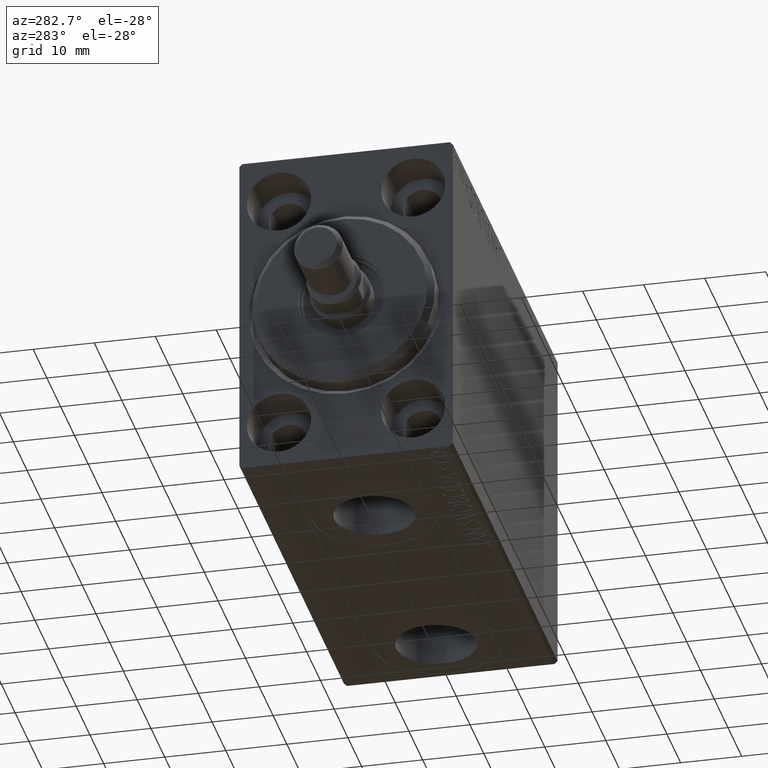
[diagram: clean part render]
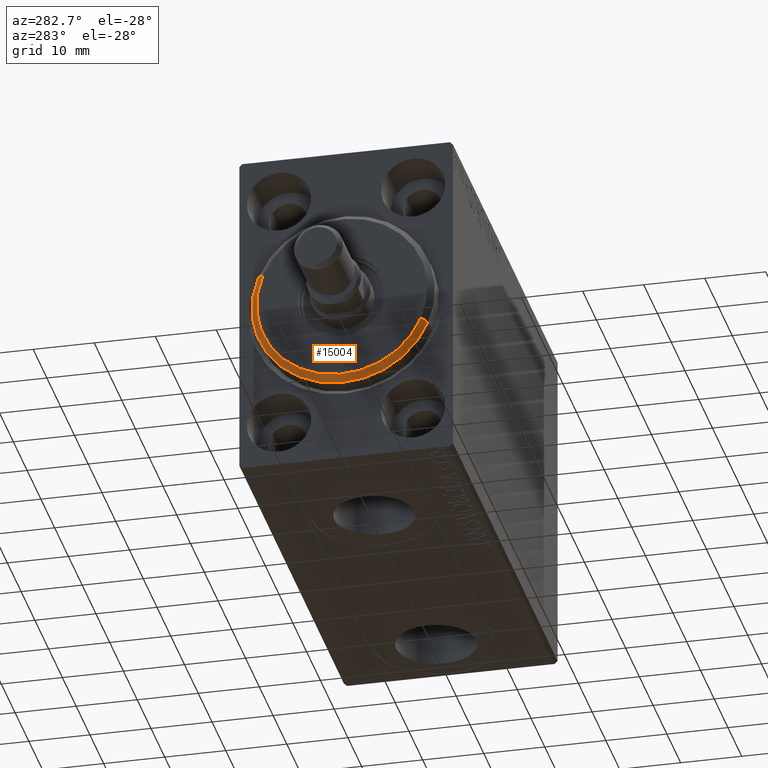
[diagram: same view with one face highlighted and labeled with its STEP entity id]
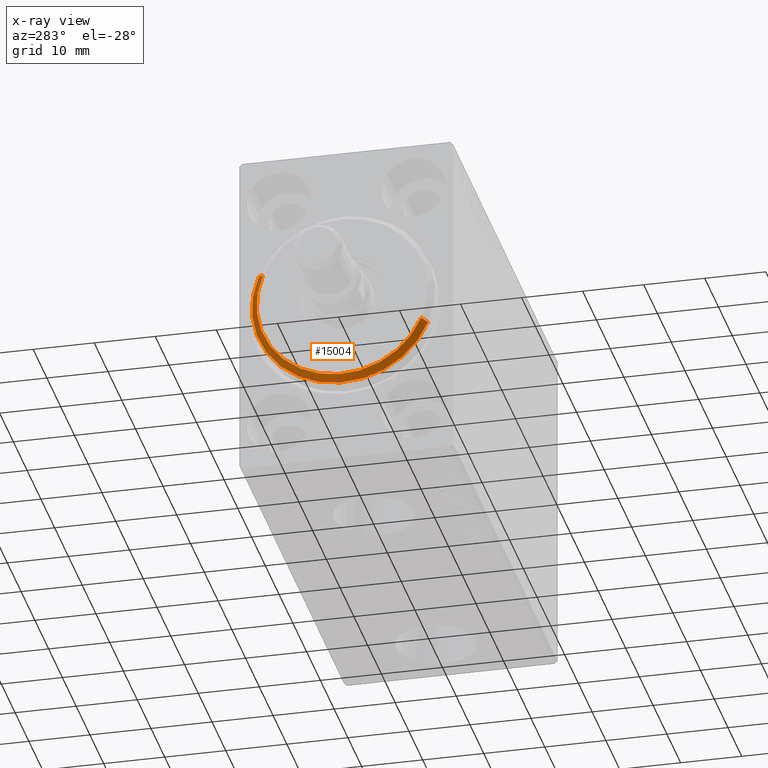
[diagram: x-ray of the same camera — body ghosted, the highlighted face saturated]
A machine part, auxiliary view. The second image highlights one B-rep face of the part: STEP entity #15004.
The next image is the same camera in x-ray: the body ghosted, the highlighted face saturated — about 0% of this face is hidden behind the body in this view.
In plain terms, the highlighted conical surface has half-angle 45 deg.
Its self-contained STEP definition (entity closure, byte-faithful):
#2839 = LINE ( 'NONE', #16099, #33953 ) ;
#4074 = CARTESIAN_POINT ( 'NONE',  ( 3.000000000000000000, 0.000000000000000000, 13.99999999999999645 ) ) ;
#4365 = ORIENTED_EDGE ( 'NONE', *, *, #4712, .F. ) ;
#4483 = DIRECTION ( 'NONE',  ( 0.000000000000000000, 0.000000000000000000, 1.000000000000000000 ) ) ;
#4712 = EDGE_CURVE ( 'NONE', #33084, #22905, #41149, .T. ) ;
#4938 = DIRECTION ( 'NONE',  ( -1.000000000000000000, 0.000000000000000000, 0.000000000000000000 ) ) ;
#9742 = ORIENTED_EDGE ( 'NONE', *, *, #21321, .F. ) ;
#11400 = DIRECTION ( 'NONE',  ( 1.000000000000000000, -0.000000000000000000, 0.000000000000000000 ) ) ;
#15004 = ADVANCED_FACE ( 'NONE', ( #42268 ), #25852, .T. ) ;
#16099 = CARTESIAN_POINT ( 'NONE',  ( 3.000000000000000000, 1.714505518806294244E-15, -13.99999999999999645 ) ) ;
#16354 = VECTOR ( 'NONE', #27845, 999.9999999999998863 ) ;
#17280 = VERTEX_POINT ( 'NONE', #29888 ) ;
#18859 = AXIS2_PLACEMENT_3D ( 'NONE', #30332, #29891, #43858 ) ;
#20244 = ORIENTED_EDGE ( 'NONE', *, *, #31460, .F. ) ;
#20783 = AXIS2_PLACEMENT_3D ( 'NONE', #28979, #4938, #4483 ) ;
#20817 = EDGE_CURVE ( 'NONE', #30123, #17280, #2839, .T. ) ;
#21321 = EDGE_CURVE ( 'NONE', #22905, #17280, #35383, .T. ) ;
#21342 = CARTESIAN_POINT ( 'NONE',  ( 3.000000000000000000, 1.775737858763662015E-15, -13.99999999999999645 ) ) ;
#22905 = VERTEX_POINT ( 'NONE', #28284 ) ;
#25852 = CONICAL_SURFACE ( 'NONE', #20783, 13.99999999999999645, 0.7853981633974473908 ) ;
#27845 = DIRECTION ( 'NONE',  ( -0.7071067811865482389, 0.000000000000000000, 0.7071067811865469066 ) ) ;
#28268 = DIRECTION ( 'NONE',  ( 0.000000000000000000, 0.000000000000000000, -1.000000000000000000 ) ) ;
#28284 = CARTESIAN_POINT ( 'NONE',  ( 1.999999999999995781, 0.000000000000000000, 15.00000000000000000 ) ) ;
#28979 = CARTESIAN_POINT ( 'NONE',  ( 3.000000000000000000, 0.000000000000000000, 0.000000000000000000 ) ) ;
#29888 = CARTESIAN_POINT ( 'NONE',  ( 1.999999999999995781, 1.836970198721029589E-15, -15.00000000000000000 ) ) ;
#29891 = DIRECTION ( 'NONE',  ( -1.000000000000000000, 0.000000000000000000, 0.000000000000000000 ) ) ;
#30123 = VERTEX_POINT ( 'NONE', #21342 ) ;
#30272 = DIRECTION ( 'NONE',  ( -0.7071067811865482389, 8.659560562354926695E-17, -0.7071067811865469066 ) ) ;
#30332 = CARTESIAN_POINT ( 'NONE',  ( 1.999999999999995781, 0.000000000000000000, 0.000000000000000000 ) ) ;
#31460 = EDGE_CURVE ( 'NONE', #30123, #33084, #36232, .T. ) ;
#32324 = CARTESIAN_POINT ( 'NONE',  ( 3.000000000000000000, 0.000000000000000000, 0.000000000000000000 ) ) ;
#33084 = VERTEX_POINT ( 'NONE', #4074 ) ;
#33953 = VECTOR ( 'NONE', #30272, 999.9999999999998863 ) ;
#34364 = EDGE_LOOP ( 'NONE', ( #20244, #44372, #9742, #4365 ) ) ;
#35383 = CIRCLE ( 'NONE', #18859, 15.00000000000000000 ) ;
#36232 = CIRCLE ( 'NONE', #38373, 13.99999999999999645 ) ;
#38373 = AXIS2_PLACEMENT_3D ( 'NONE', #32324, #11400, #28268 ) ;
#38434 = CARTESIAN_POINT ( 'NONE',  ( 3.000000000000000000, 0.000000000000000000, 13.99999999999999645 ) ) ;
#41149 = LINE ( 'NONE', #38434, #16354 ) ;
#42268 = FACE_OUTER_BOUND ( 'NONE', #34364, .T. ) ;
#43858 = DIRECTION ( 'NONE',  ( 0.000000000000000000, 0.000000000000000000, -1.000000000000000000 ) ) ;
#44372 = ORIENTED_EDGE ( 'NONE', *, *, #20817, .T. ) ;